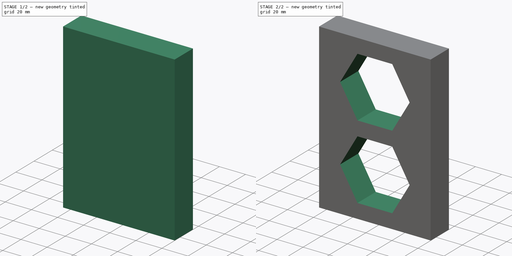
[diagram: build sequence overview — one tinted view per stage of 2, left to right]
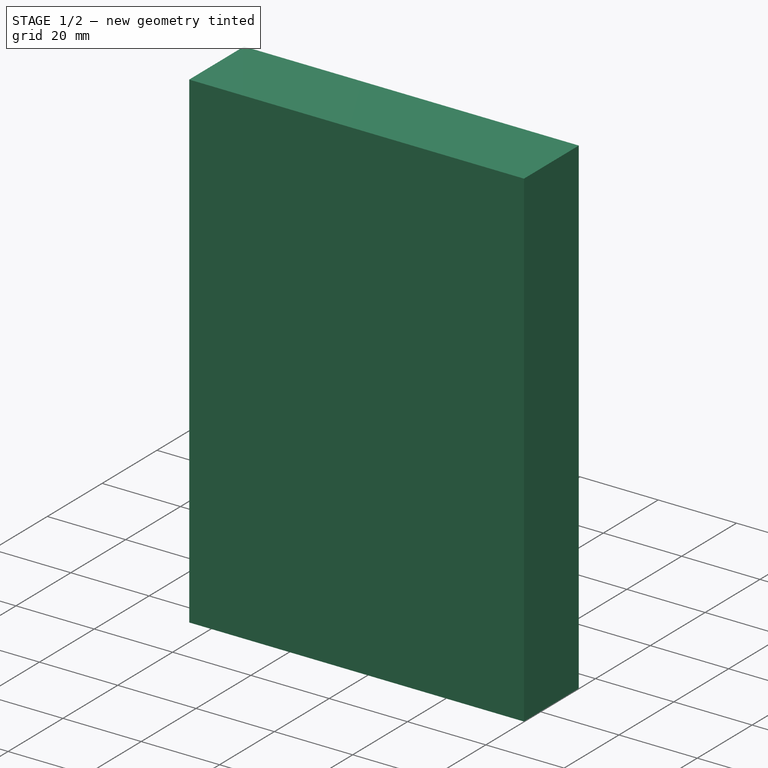
[diagram: stage 1 of 2 — iso view after this stage's code; geometry added in this stage tinted green]
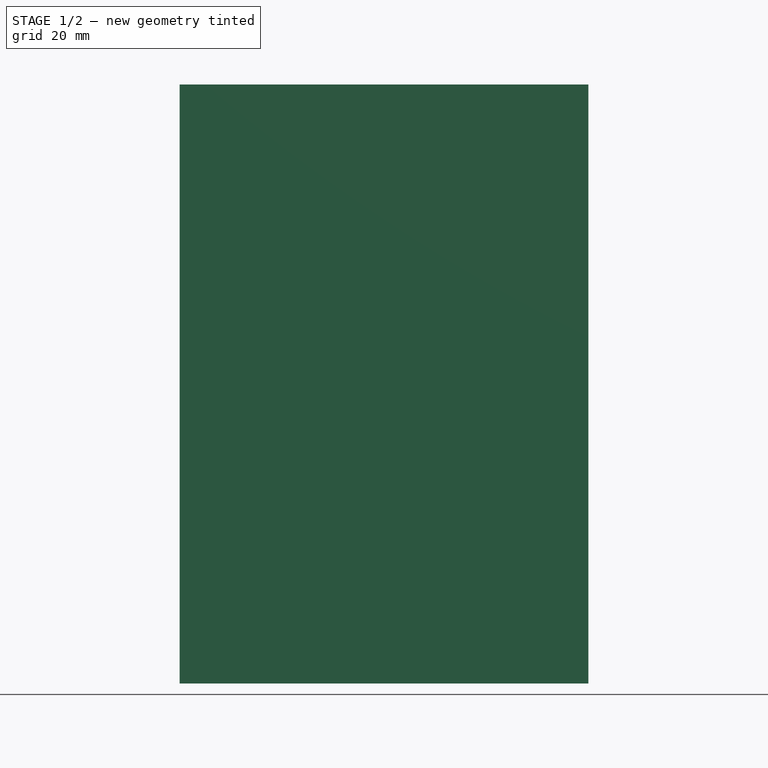
[diagram: stage 1 of 2 — front view after this stage's code; geometry added in this stage tinted green]
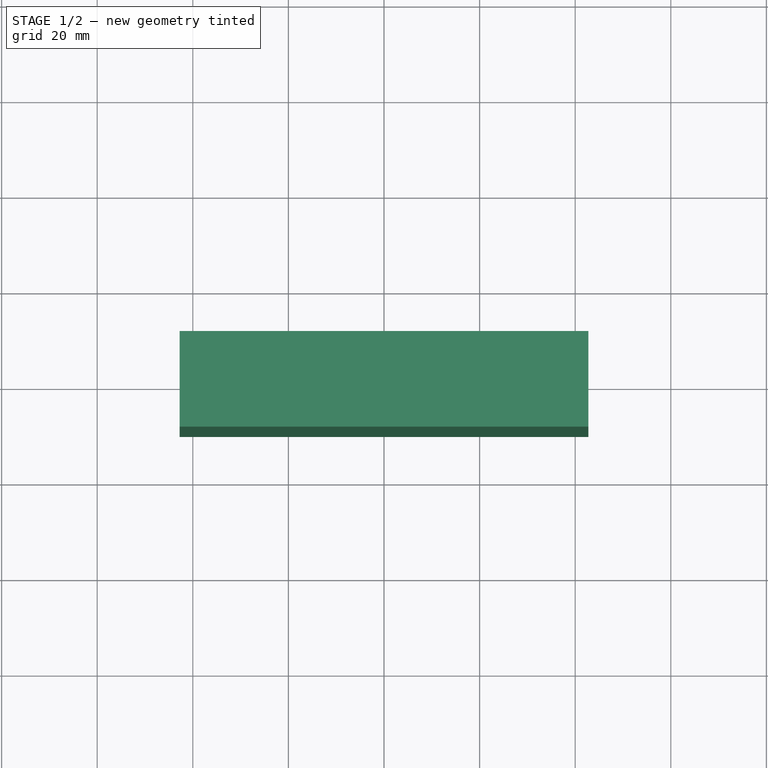
[diagram: stage 1 of 2 — top view after this stage's code; geometry added in this stage tinted green]
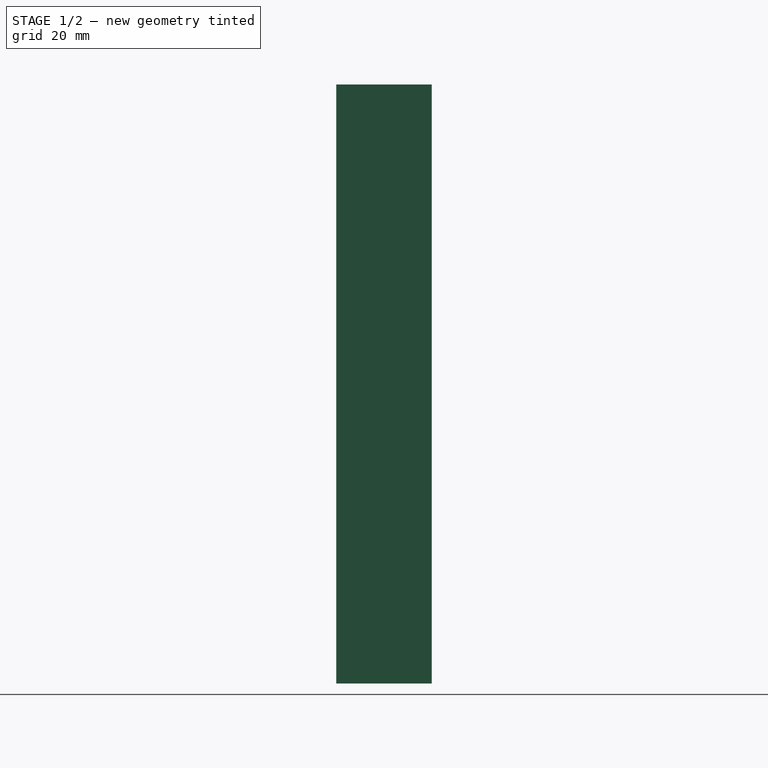
[diagram: stage 1 of 2 — right view after this stage's code; geometry added in this stage tinted green]
FCSTD DOCUMENT  (FreeCAD 2024.2R37179 (Git))
Label: model
License: All rights reserved
LicenseURL: https://en.wikipedia.org/wiki/All_rights_reserved
objects: PartDesign::Body×2, Sketcher::SketchObject×2, PartDesign::Pocket×2, PartDesign::Pad×1
note: 10 computed .brp shape members not serialized (recipe doc carries the construction recipe); baked Part::Feature solids carry a one-line shape summary decoded from their .brp

FEATURE [PartDesign::Body] Body
  Origin = -> Origin
FEATURE [Sketcher::SketchObject] Sketch
  AttachmentSupport = -> [XY_Plane001]
  FullyConstrained = true
  MapMode = 5
  sketch-geometry (5):
    g0: LineSegment StartX=-42.75 StartY=-10 StartZ=0 EndX=42.75 EndY=-10 EndZ=0
    g1: LineSegment StartX=42.75 StartY=-10 StartZ=0 EndX=42.75 EndY=10 EndZ=0
    g2: LineSegment StartX=42.75 StartY=10 StartZ=0 EndX=-42.75 EndY=10 EndZ=0
    g3: LineSegment StartX=-42.75 StartY=10 StartZ=0 EndX=-42.75 EndY=-10 EndZ=0
    g4: GeomPoint X=0 Y=0 Z=0
  constraints (12):
    c: Coincident(g0,g1)
    c: Coincident(g1,g2)
    c: Coincident(g2,g3)
    c: Coincident(g3,g0)
    c: Horizontal(g0)
    c: Horizontal(g2)
    c: Vertical(g1)
    c: Vertical(g3)
    c: Symmetric(g2,g0,g4)
    c: Distance(g1,g3) = 85.5
    c: Distance(g0,g2) = 20
    c: Coincident(g4,g-1)
FEATURE [PartDesign::Pad] Pad
  Direction = (0,0,1)
  Length = 127.2
  Length2 = 10
  Profile = -> Sketch
  ReferenceAxis = -> Sketch [N_Axis]
  Refine = true
  Suppressed = false
  Type = 0
FEATURE [PartDesign::Pocket] Pocket
  BaseFeature = -> Pad
  Direction = (0,0,1)
  Length = 1.88
  Length2 = 5
  Profile = -> Pad [Face5]
  Refine = true
  Suppressed = false
  Type = 0
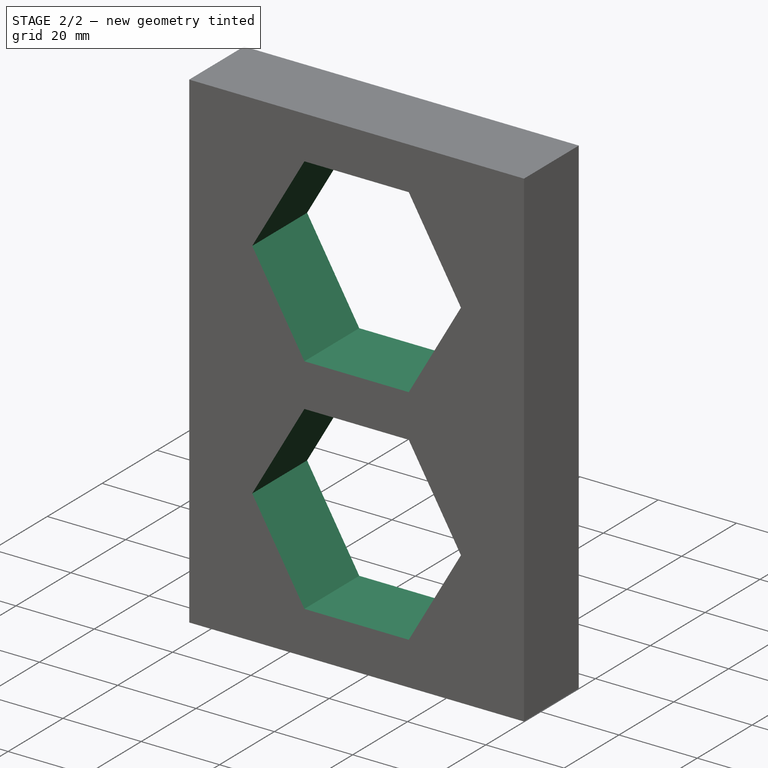
[diagram: stage 2 of 2 — iso view after this stage's code; geometry added in this stage tinted green]
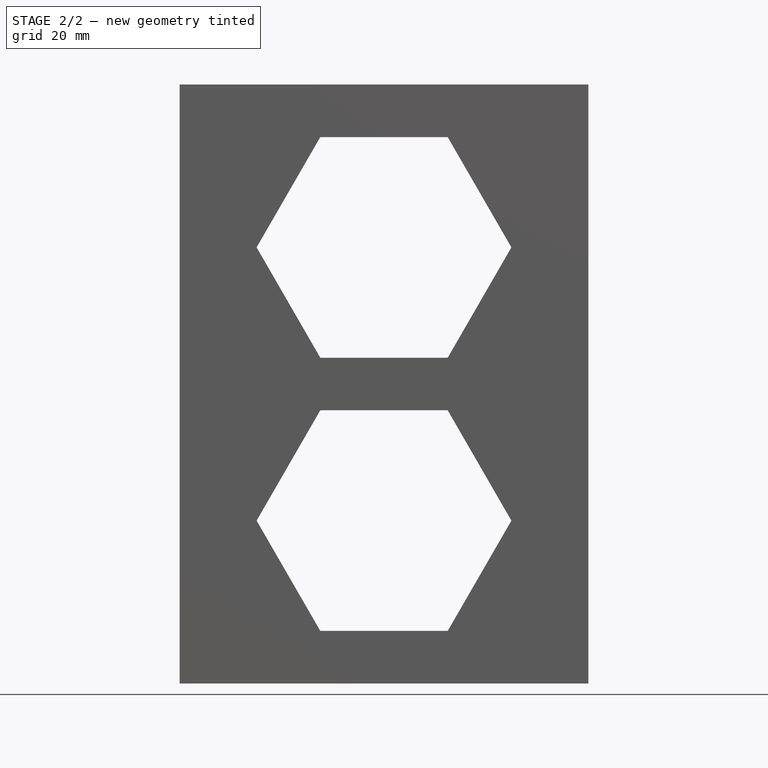
[diagram: stage 2 of 2 — front view after this stage's code; geometry added in this stage tinted green]
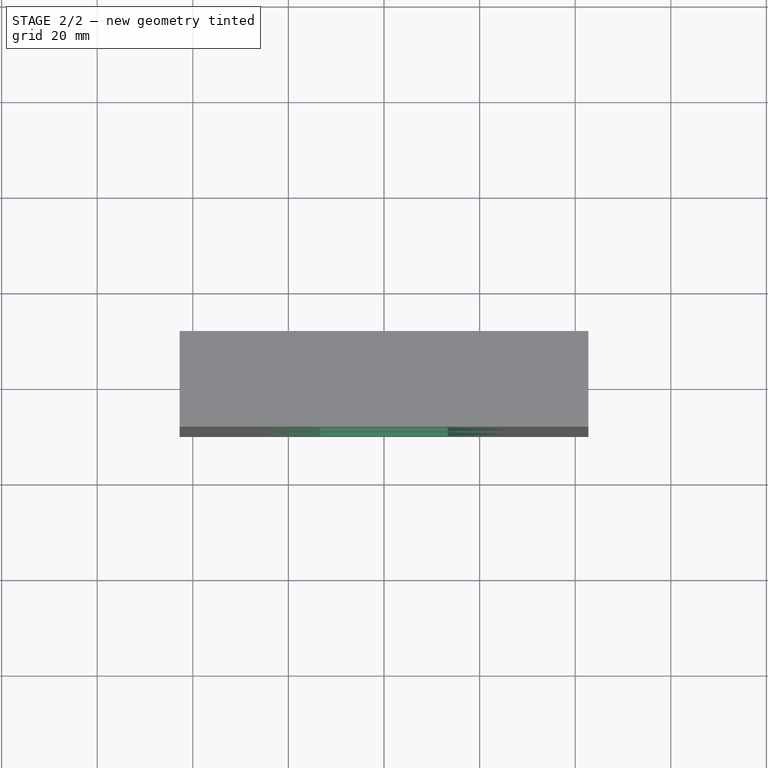
[diagram: stage 2 of 2 — top view after this stage's code; geometry added in this stage tinted green]
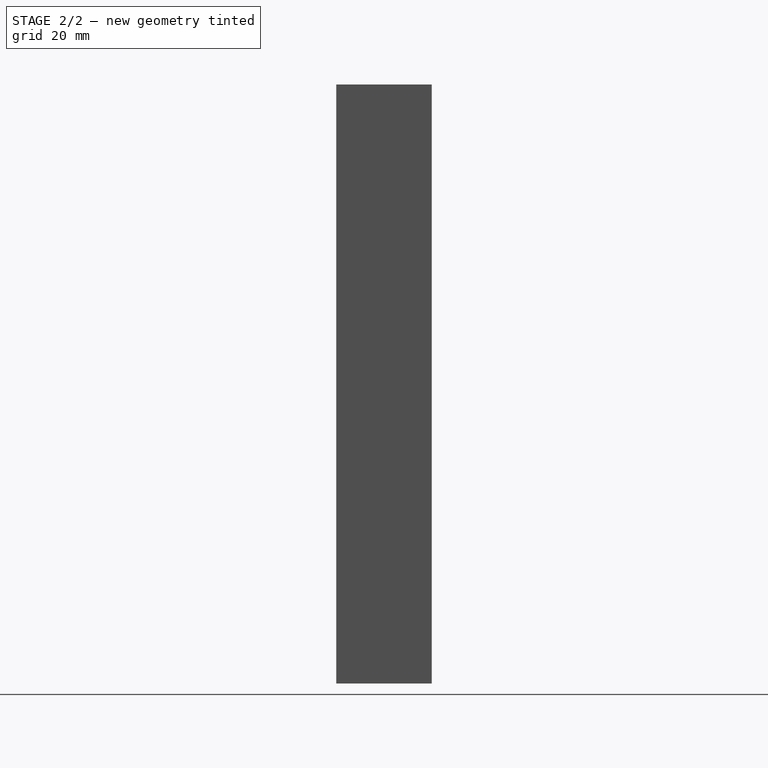
[diagram: stage 2 of 2 — right view after this stage's code; geometry added in this stage tinted green]
FEATURE [Sketcher::SketchObject] Sketch001
  AttachmentSupport = -> [Pocket]
  ExternalGeometry = -> [Pocket]
  FullyConstrained = true
  MapMode = 5
  Placement = pos=(0,-10,0) rot=(1,0,0;1.5708rad)
  sketch-geometry (14):
    g0: LineSegment StartX=13.3252 StartY=70.04 StartZ=0 EndX=26.6505 EndY=93.12 EndZ=0
    g1: LineSegment StartX=26.6505 StartY=93.12 StartZ=0 EndX=13.3252 EndY=116.2 EndZ=0
    g2: LineSegment StartX=13.3252 StartY=116.2 StartZ=0 EndX=-13.3252 EndY=116.2 EndZ=0
    g3: LineSegment StartX=-13.3252 StartY=116.2 StartZ=0 EndX=-26.6505 EndY=93.12 EndZ=0
    g4: LineSegment StartX=-26.6505 StartY=93.12 StartZ=0 EndX=-13.3252 EndY=70.04 EndZ=0
    g5: LineSegment StartX=-13.3252 StartY=70.04 StartZ=0 EndX=13.3252 EndY=70.04 EndZ=0
    g6: Circle CenterX=0 CenterY=93.12 CenterZ=0 NormalX=0 NormalY=0 NormalZ=1 AngleXU=0 Radius=26.6505
    g7: LineSegment StartX=13.3252 StartY=12.88 StartZ=0 EndX=26.6505 EndY=35.96 EndZ=0
    g8: LineSegment StartX=26.6505 StartY=35.96 StartZ=0 EndX=13.3252 EndY=59.04 EndZ=0
    g9: LineSegment StartX=13.3252 StartY=59.04 StartZ=0 EndX=-13.3252 EndY=59.04 EndZ=0
    g10: LineSegment StartX=-13.3252 StartY=59.04 StartZ=0 EndX=-26.6505 EndY=35.96 EndZ=0
    g11: LineSegment StartX=-26.6505 StartY=35.96 StartZ=0 EndX=-13.3252 EndY=12.88 EndZ=0
    g12: LineSegment StartX=-13.3252 StartY=12.88 StartZ=0 EndX=13.3252 EndY=12.88 EndZ=0
    g13: Circle CenterX=0 CenterY=35.96 CenterZ=0 NormalX=0 NormalY=0 NormalZ=1 AngleXU=0 Radius=26.6505
  constraints (34):
    c: Coincident(g0,g1)
    c: Coincident(g1,g2)
    c: Coincident(g2,g3)
    c: Coincident(g3,g4)
    c: Coincident(g4,g5)
    c: Coincident(g5,g0)
    c: Equal(g0, g1-g5) x5
    c: PointOnObject(g0,g6)
    c: PointOnObject(g1,g6)
    c: PointOnObject(g2,g6)
    c: PointOnObject(g3,g6)
    c: PointOnObject(g4,g6)
    c: PointOnObject(g5,g6)
    c: PointOnObject(g6,g-2)
    c: Coincident(g7,g8)
    c: Coincident(g8,g9)
    c: Coincident(g9,g10)
    c: Coincident(g10,g11)
    c: Coincident(g11,g12)
    c: Coincident(g12,g7)
    c: Equal(g7, g8-g12) x5
    c: PointOnObject(g7,g13)
    c: PointOnObject(g8,g13)
    c: PointOnObject(g9,g13)
    c: PointOnObject(g10,g13)
    c: PointOnObject(g11,g13)
    c: PointOnObject(g12,g13)
    c: PointOnObject(g13,g-2)
    c: Equal(g5,g9)
    c: Horizontal(g5)
    c: Horizontal(g9)
    c: DistanceY(g1,g-4) = 11
    c: DistanceY(g-3,g7) = 11
    c: DistanceY(g8,g0) = 11
FEATURE [PartDesign::Pocket] Pocket001
  BaseFeature = -> Pocket
  Direction = (0,1,-2e-16)
  Length = 5
  Length2 = 5
  Profile = -> Sketch001
  ReferenceAxis = -> Sketch001 [N_Axis]
  Refine = true
  Suppressed = false
  Type = 1
FEATURE [PartDesign::Body] Body001
  Group = -> [Sketch,Pad,Pocket,Sketch001,Pocket001]
  Origin = -> Origin001
  Tip = -> Pocket001
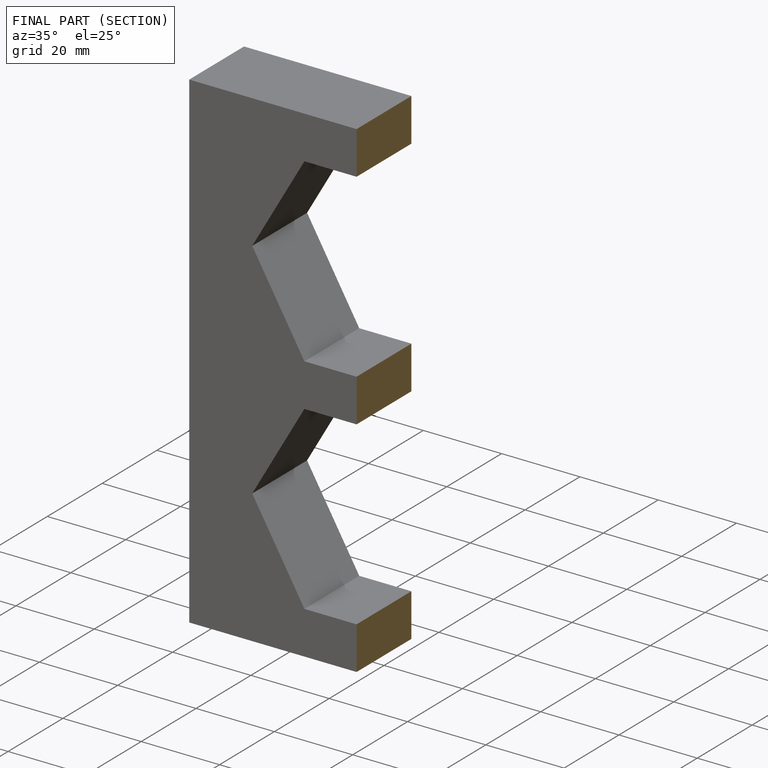
[diagram: finished part — half-section view (interior)]
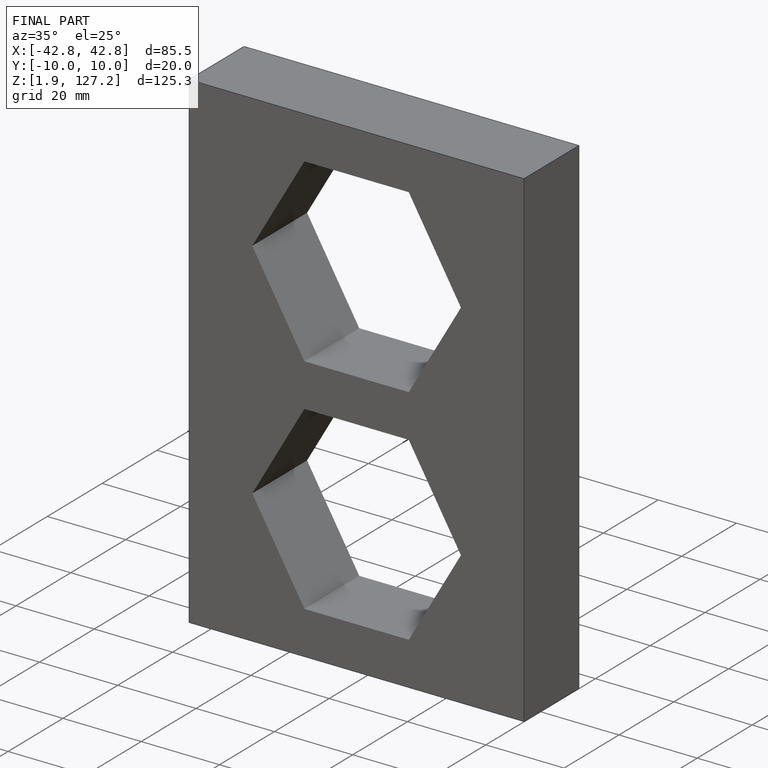
[diagram: finished part — iso view with bounding-box wireframe]
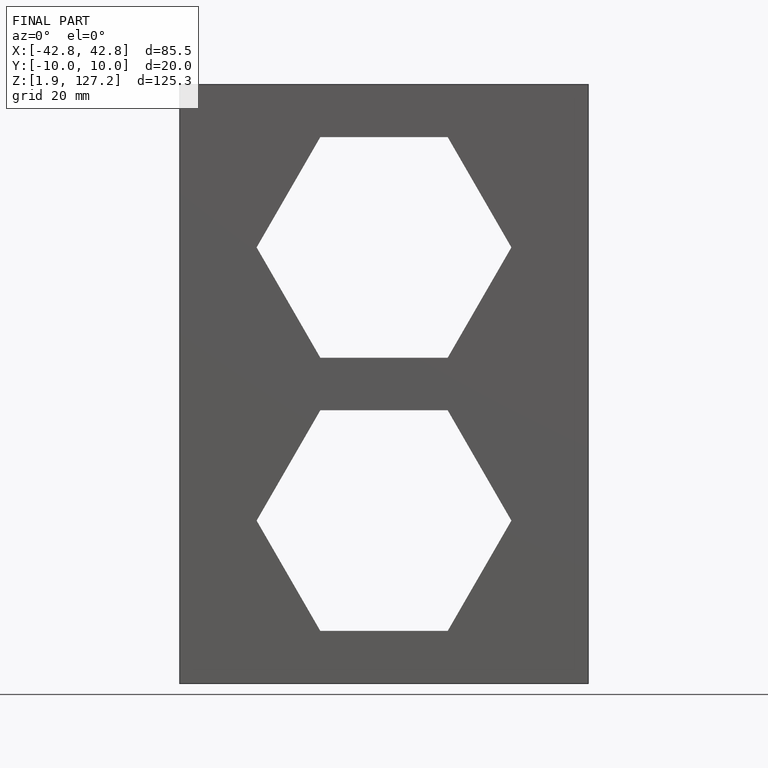
[diagram: finished part — front view with bounding-box wireframe]
